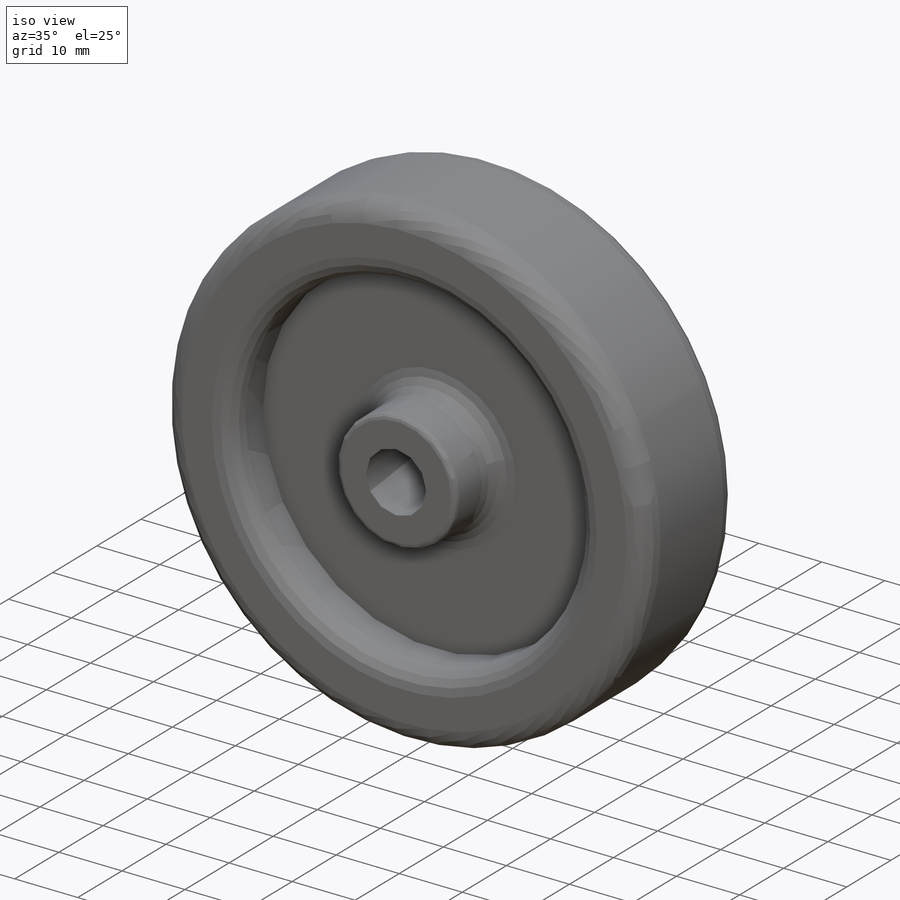
[diagram: iso view]
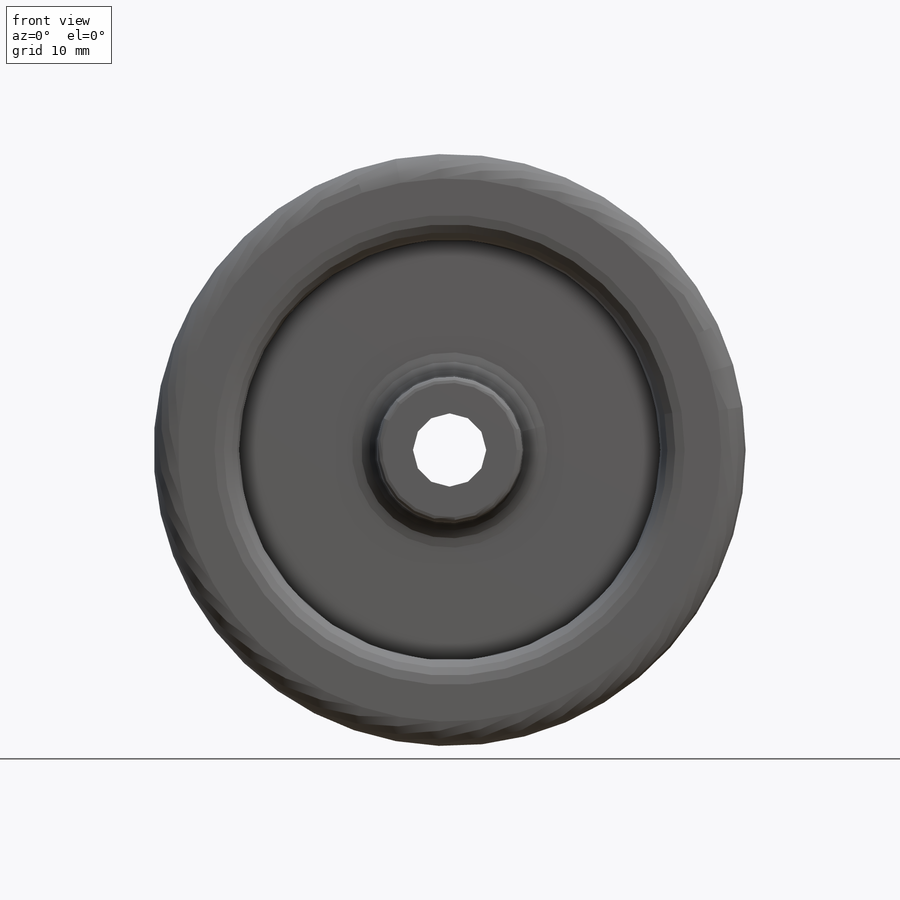
[diagram: front view]
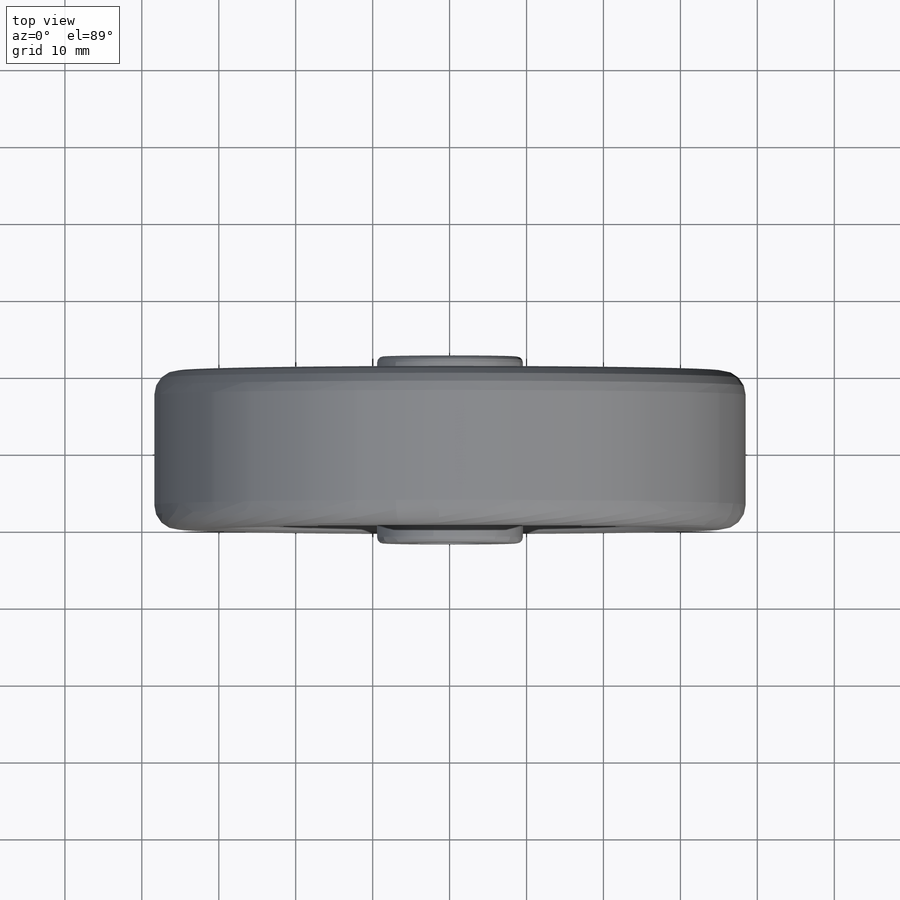
[diagram: top view]
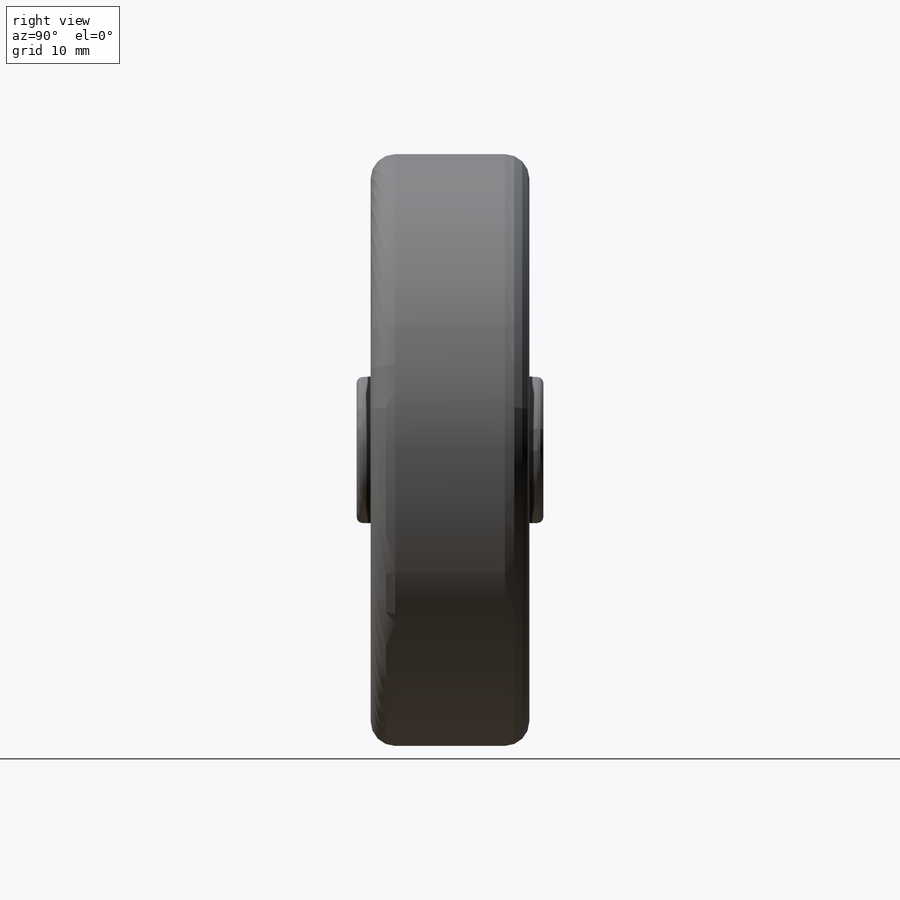
[diagram: right view]
SOLIDWORKS PART (.sldprt)
format: sldprt  version: not decoded by parser v0  size: 259,072 bytes
history: native  units: mm
features: sketch x4, extrude x2, cut_extrude x2, fillet x2, material x1 (+14 scaffold rows collapsed)
feature tree (25):
  scaffold x14  (default folders/planes/origin — collapsed)
  material  "Material <not specified>"
  sketch  "Sketch1"  dims[D1=9.525mm D2=76.962mm]
  extrude  "Boss-Extrude1"  Depth=10.3124mm
  sketch  "Sketch2"  dims[D1=19.05mm D2=9.525mm]
  extrude  "Boss-Extrude2"  Depth=1.8288mm
  sketch  "Sketch3"  dims[D1=54.7624mm D2=19.05mm]
  cut_extrude  "Cut-Extrude1"  Depth=7.1374mm
  sketch  "Sketch4"  dims[D1=19.05mm D2=54.7624mm]
  cut_extrude  "Cut-Extrude2"  Depth=7.1374mm
  fillet  "Fillet1"  Radius=3.175mm
  fillet  "Fillet2"  Radius=0.7874mm
decode coverage: 10 of 10 modeling features carry decoded parameters
note: suppression state not decoded; provenance and decode notes live in map.json
